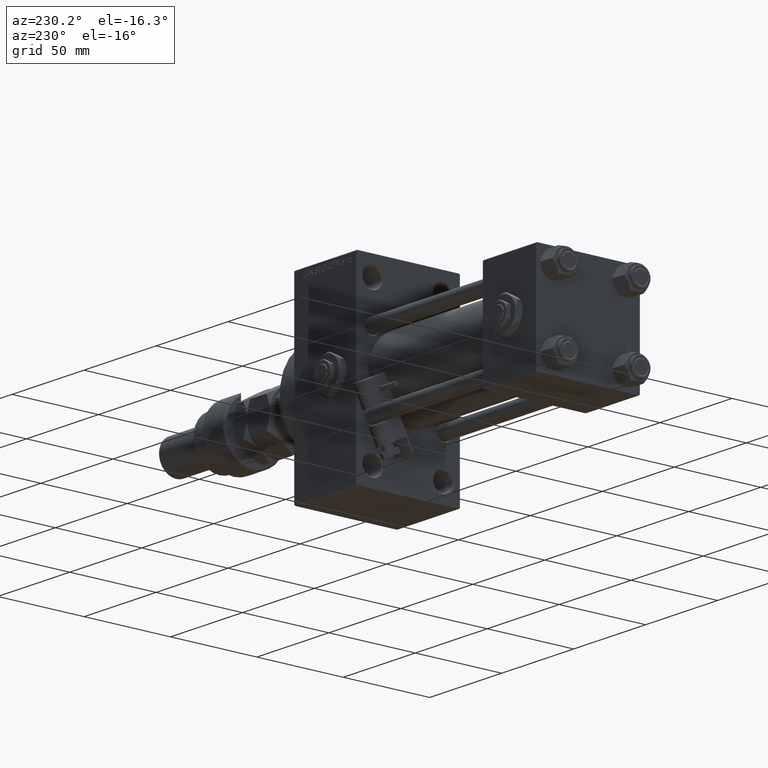
[diagram: clean part render]
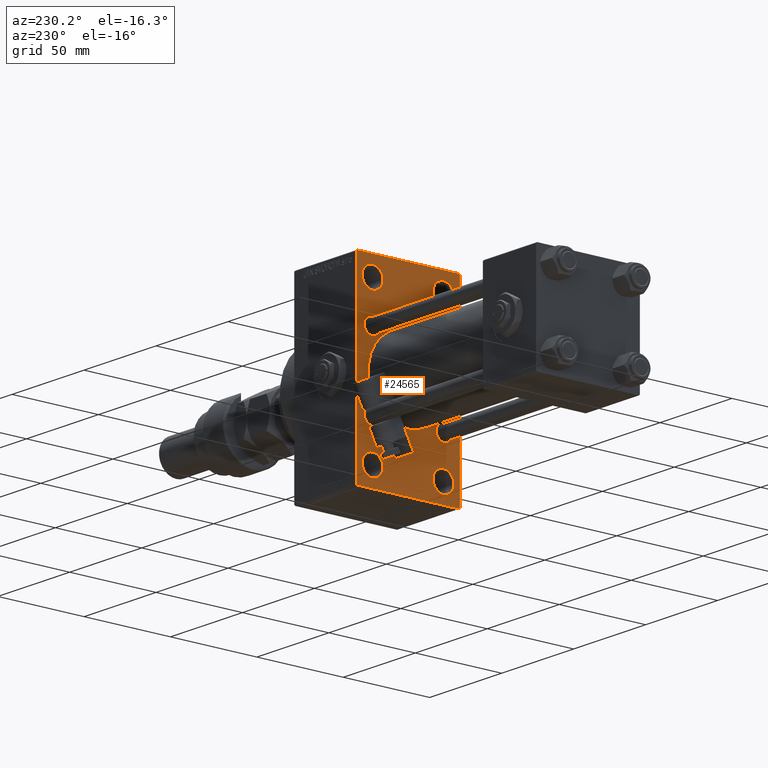
[diagram: same view with one face highlighted and labeled with its STEP entity id]
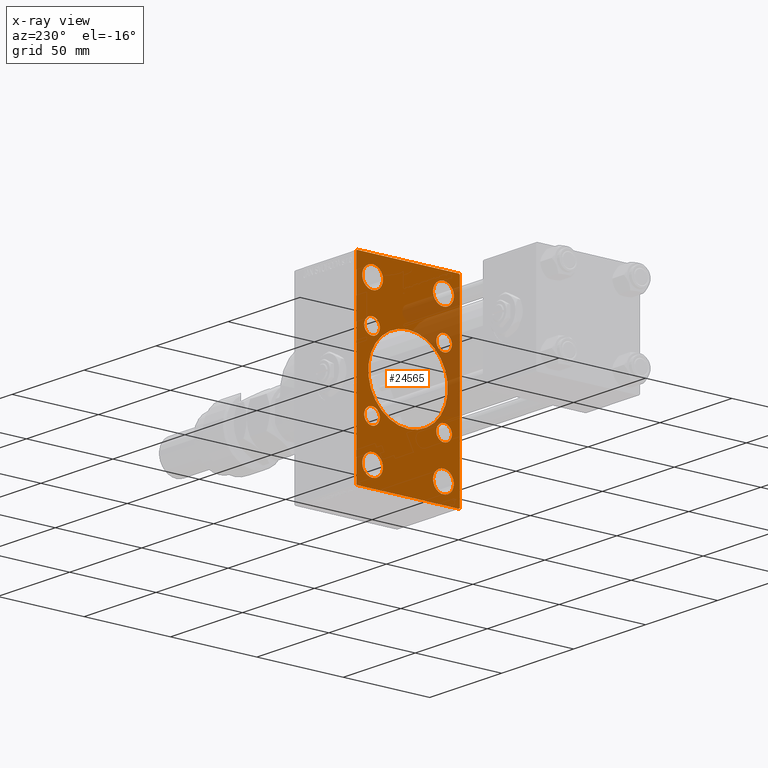
[diagram: x-ray of the same camera — body ghosted, the highlighted face saturated]
A machine part, auxiliary view. The second image highlights one B-rep face of the part: STEP entity #24565.
The next image is the same camera in x-ray: the body ghosted, the highlighted face saturated — about 19% of this face is hidden behind the body in this view.
In plain terms, the highlighted planar face has unit normal (-1, 0, 0).
Its self-contained STEP definition (entity closure, byte-faithful):
#404 = AXIS2_PLACEMENT_3D ( 'NONE', #41625, #49487, #28380 ) ;
#410 = CARTESIAN_POINT ( 'NONE',  ( 125.0000000000000000, 29.50000000000002132, 54.49999999999999289 ) ) ;
#422 = CARTESIAN_POINT ( 'NONE',  ( 125.0000000000000000, -20.50000000000000000, 37.50000000000002132 ) ) ;
#503 = ORIENTED_EDGE ( 'NONE', *, *, #37996, .T. ) ;
#566 = DIRECTION ( 'NONE',  ( -0.000000000000000000, -0.7071067811865474617, -0.7071067811865474617 ) ) ;
#615 = DIRECTION ( 'NONE',  ( 1.000000000000000000, -0.000000000000000000, 0.000000000000000000 ) ) ;
#660 = DIRECTION ( 'NONE',  ( 0.000000000000000000, 0.000000000000000000, 1.000000000000000000 ) ) ;
#721 = ORIENTED_EDGE ( 'NONE', *, *, #29693, .T. ) ;
#729 = VECTOR ( 'NONE', #18393, 1000.000000000000000 ) ;
#1064 = CIRCLE ( 'NONE', #17462, 4.500000000000007105 ) ;
#1438 = EDGE_LOOP ( 'NONE', ( #50406, #50508 ) ) ;
#1894 = LINE ( 'NONE', #7502, #729 ) ;
#2393 = CARTESIAN_POINT ( 'NONE',  ( 125.0000000000000000, 20.84999999999999787, -25.35000000000000853 ) ) ;
#2543 = LINE ( 'NONE', #30935, #47621 ) ;
#2581 = CIRCLE ( 'NONE', #32794, 23.00000000000000000 ) ;
#3138 = CIRCLE ( 'NONE', #16935, 5.999999999999977796 ) ;
#4189 = DIRECTION ( 'NONE',  ( 0.000000000000000000, 0.000000000000000000, -1.000000000000000000 ) ) ;
#4219 = DIRECTION ( 'NONE',  ( 1.000000000000000000, -0.000000000000000000, 0.000000000000000000 ) ) ;
#4328 = CARTESIAN_POINT ( 'NONE',  ( 125.0000000000000000, 20.84999999999999787, 25.35000000000000853 ) ) ;
#4522 = AXIS2_PLACEMENT_3D ( 'NONE', #46110, #4219, #13376 ) ;
#4715 = DIRECTION ( 'NONE',  ( 1.000000000000000000, -0.000000000000000000, 0.000000000000000000 ) ) ;
#4793 = EDGE_CURVE ( 'NONE', #33129, #10906, #35508, .T. ) ;
#4879 = CARTESIAN_POINT ( 'NONE',  ( 125.0000000000000000, -20.84999999999999076, 20.85000000000000497 ) ) ;
#5153 = EDGE_CURVE ( 'NONE', #49740, #30790, #2543, .T. ) ;
#5452 = DIRECTION ( 'NONE',  ( 0.000000000000000000, -1.000000000000000000, 1.156482317317871478E-16 ) ) ;
#5736 = EDGE_CURVE ( 'NONE', #29857, #10230, #46714, .T. ) ;
#6022 = CARTESIAN_POINT ( 'NONE',  ( 125.0000000000000000, -20.84999999999999076, -16.34999999999999787 ) ) ;
#6575 = EDGE_LOOP ( 'NONE', ( #40809, #40176, #36587, #22418, #35869, #43142, #46868, #32538 ) ) ;
#7234 = DIRECTION ( 'NONE',  ( 1.000000000000000000, -0.000000000000000000, 0.000000000000000000 ) ) ;
#7495 = CARTESIAN_POINT ( 'NONE',  ( 125.0000000000000000, 20.50000000000000000, 43.50000000000000000 ) ) ;
#7502 = CARTESIAN_POINT ( 'NONE',  ( 125.0000000000000000, -30.00000000000000000, 54.50000000000000000 ) ) ;
#7738 = VECTOR ( 'NONE', #5452, 1000.000000000000000 ) ;
#8505 = ORIENTED_EDGE ( 'NONE', *, *, #22431, .T. ) ;
#8590 = CIRCLE ( 'NONE', #46611, 4.500000000000007105 ) ;
#8732 = VERTEX_POINT ( 'NONE', #29645 ) ;
#8984 = CARTESIAN_POINT ( 'NONE',  ( 125.0000000000000000, 2.146024240737016609E-16, -23.00000000000000000 ) ) ;
#9085 = VERTEX_POINT ( 'NONE', #4328 ) ;
#9693 = VECTOR ( 'NONE', #48330, 1000.000000000000000 ) ;
#9947 = FACE_BOUND ( 'NONE', #28767, .T. ) ;
#10016 = ORIENTED_EDGE ( 'NONE', *, *, #4793, .T. ) ;
#10164 = DIRECTION ( 'NONE',  ( 1.000000000000000000, -0.000000000000000000, 0.000000000000000000 ) ) ;
#10230 = VERTEX_POINT ( 'NONE', #43307 ) ;
#10776 = VERTEX_POINT ( 'NONE', #8984 ) ;
#10816 = AXIS2_PLACEMENT_3D ( 'NONE', #33105, #4715, #37705 ) ;
#10854 = AXIS2_PLACEMENT_3D ( 'NONE', #32273, #41703, #24144 ) ;
#10906 = VERTEX_POINT ( 'NONE', #6022 ) ;
#11081 = ORIENTED_EDGE ( 'NONE', *, *, #36310, .T. ) ;
#11123 = EDGE_CURVE ( 'NONE', #48088, #18286, #13163, .T. ) ;
#11327 = EDGE_CURVE ( 'NONE', #30790, #36145, #44007, .T. ) ;
#11695 = DIRECTION ( 'NONE',  ( 1.000000000000000000, -0.000000000000000000, 0.000000000000000000 ) ) ;
#11858 = AXIS2_PLACEMENT_3D ( 'NONE', #18065, #43752, #22648 ) ;
#11905 = ORIENTED_EDGE ( 'NONE', *, *, #11123, .T. ) ;
#11984 = CARTESIAN_POINT ( 'NONE',  ( 125.0000000000000000, 20.84999999999999787, -16.34999999999999432 ) ) ;
#12001 = AXIS2_PLACEMENT_3D ( 'NONE', #38352, #34031, #26898 ) ;
#12624 = ORIENTED_EDGE ( 'NONE', *, *, #32885, .T. ) ;
#12941 = CARTESIAN_POINT ( 'NONE',  ( 125.0000000000000000, -20.50000000000000000, -37.50000000000002132 ) ) ;
#13163 = CIRCLE ( 'NONE', #38233, 5.999999999999977796 ) ;
#13231 = DIRECTION ( 'NONE',  ( 1.000000000000000000, 0.000000000000000000, 0.000000000000000000 ) ) ;
#13376 = DIRECTION ( 'NONE',  ( 0.000000000000000000, 0.000000000000000000, 1.000000000000000000 ) ) ;
#14236 = DIRECTION ( 'NONE',  ( 0.000000000000000000, 0.000000000000000000, 1.000000000000000000 ) ) ;
#14269 = PLANE ( 'NONE',  #11858 ) ;
#14460 = CARTESIAN_POINT ( 'NONE',  ( 125.0000000000000000, 20.50000000000000000, 37.50000000000002132 ) ) ;
#14645 = CIRCLE ( 'NONE', #50929, 4.500000000000007105 ) ;
#14724 = DIRECTION ( 'NONE',  ( 0.000000000000000000, -0.7071067811865352493, 0.7071067811865597852 ) ) ;
#15075 = DIRECTION ( 'NONE',  ( 0.000000000000000000, 0.000000000000000000, 1.000000000000000000 ) ) ;
#15100 = ORIENTED_EDGE ( 'NONE', *, *, #49848, .T. ) ;
#15120 = DIRECTION ( 'NONE',  ( 1.000000000000000000, -0.000000000000000000, 0.000000000000000000 ) ) ;
#15628 = DIRECTION ( 'NONE',  ( 1.000000000000000000, -0.000000000000000000, 0.000000000000000000 ) ) ;
#15694 = EDGE_LOOP ( 'NONE', ( #49977, #34892 ) ) ;
#15750 = EDGE_CURVE ( 'NONE', #10906, #33129, #19410, .T. ) ;
#16000 = CIRCLE ( 'NONE', #10816, 5.999999999999977796 ) ;
#16106 = VERTEX_POINT ( 'NONE', #21359 ) ;
#16160 = ORIENTED_EDGE ( 'NONE', *, *, #45811, .T. ) ;
#16341 = CARTESIAN_POINT ( 'NONE',  ( 125.0000000000000000, -20.50000000000000000, 43.50000000000000000 ) ) ;
#16557 = CARTESIAN_POINT ( 'NONE',  ( 125.0000000000000000, -20.84999999999999076, -20.85000000000000497 ) ) ;
#16677 = AXIS2_PLACEMENT_3D ( 'NONE', #16341, #37703, #660 ) ;
#16720 = EDGE_LOOP ( 'NONE', ( #503, #52188 ) ) ;
#16935 = AXIS2_PLACEMENT_3D ( 'NONE', #7495, #7234, #18598 ) ;
#17109 = ORIENTED_EDGE ( 'NONE', *, *, #29023, .T. ) ;
#17166 = VERTEX_POINT ( 'NONE', #23260 ) ;
#17223 = CARTESIAN_POINT ( 'NONE',  ( 125.0000000000000000, -20.84999999999999076, -20.85000000000000497 ) ) ;
#17462 = AXIS2_PLACEMENT_3D ( 'NONE', #51980, #52259, #31165 ) ;
#17732 = EDGE_CURVE ( 'NONE', #29383, #8732, #16000, .T. ) ;
#17759 = CIRCLE ( 'NONE', #10854, 4.500000000000007105 ) ;
#17931 = ORIENTED_EDGE ( 'NONE', *, *, #51969, .T. ) ;
#18065 = CARTESIAN_POINT ( 'NONE',  ( 125.0000000000000000, 0.000000000000000000, 0.000000000000000000 ) ) ;
#18240 = CIRCLE ( 'NONE', #50187, 23.00000000000000000 ) ;
#18286 = VERTEX_POINT ( 'NONE', #12941 ) ;
#18288 = DIRECTION ( 'NONE',  ( 0.000000000000000000, 0.000000000000000000, 1.000000000000000000 ) ) ;
#18393 = DIRECTION ( 'NONE',  ( 0.000000000000000000, 0.000000000000000000, -1.000000000000000000 ) ) ;
#18396 = DIRECTION ( 'NONE',  ( 1.000000000000000000, -0.000000000000000000, 0.000000000000000000 ) ) ;
#18430 = CIRCLE ( 'NONE', #16677, 5.999999999999977796 ) ;
#18598 = DIRECTION ( 'NONE',  ( 0.000000000000000000, 0.000000000000000000, 1.000000000000000000 ) ) ;
#18746 = CARTESIAN_POINT ( 'NONE',  ( 125.0000000000000000, 29.99999999999999645, 53.99999999999999289 ) ) ;
#19126 = CARTESIAN_POINT ( 'NONE',  ( 125.0000000000000000, 29.99999999999999645, 54.49999999999999289 ) ) ;
#19258 = VERTEX_POINT ( 'NONE', #35238 ) ;
#19410 = CIRCLE ( 'NONE', #34094, 4.500000000000007105 ) ;
#19578 = AXIS2_PLACEMENT_3D ( 'NONE', #38939, #18396, #47588 ) ;
#20562 = CARTESIAN_POINT ( 'NONE',  ( 125.0000000000000000, -20.84999999999999076, -25.35000000000001208 ) ) ;
#21359 = CARTESIAN_POINT ( 'NONE',  ( 125.0000000000000000, -29.49999999999997513, 54.50000000000000000 ) ) ;
#21733 = CIRCLE ( 'NONE', #4522, 5.999999999999977796 ) ;
#22124 = FACE_OUTER_BOUND ( 'NONE', #6575, .T. ) ;
#22418 = ORIENTED_EDGE ( 'NONE', *, *, #51971, .T. ) ;
#22431 = EDGE_CURVE ( 'NONE', #37616, #51749, #3138, .T. ) ;
#22648 = DIRECTION ( 'NONE',  ( -0.000000000000000000, 0.000000000000000000, 1.000000000000000000 ) ) ;
#22710 = VERTEX_POINT ( 'NONE', #35029 ) ;
#22854 = CIRCLE ( 'NONE', #404, 5.999999999999977796 ) ;
#23192 = FACE_BOUND ( 'NONE', #1438, .T. ) ;
#23260 = CARTESIAN_POINT ( 'NONE',  ( 125.0000000000000000, -30.00000000000000000, -53.99999999999998579 ) ) ;
#23414 = EDGE_CURVE ( 'NONE', #51749, #37616, #42876, .T. ) ;
#23657 = LINE ( 'NONE', #48010, #37016 ) ;
#23878 = EDGE_LOOP ( 'NONE', ( #12624, #16160 ) ) ;
#23998 = CARTESIAN_POINT ( 'NONE',  ( 125.0000000000000000, -20.50000000000000000, -43.50000000000000000 ) ) ;
#24130 = DIRECTION ( 'NONE',  ( 0.000000000000000000, 0.000000000000000000, 1.000000000000000000 ) ) ;
#24144 = DIRECTION ( 'NONE',  ( 0.000000000000000000, 0.000000000000000000, 1.000000000000000000 ) ) ;
#24565 = ADVANCED_FACE ( 'NONE', ( #23192, #46998, #47265, #51048, #31036, #34840, #39419, #9947, #26437, #22124 ), #14269, .T. ) ;
#25712 = CARTESIAN_POINT ( 'NONE',  ( 125.0000000000000000, 29.99999999999999645, 54.49999999999999289 ) ) ;
#25931 = LINE ( 'NONE', #42434, #42422 ) ;
#26437 = FACE_BOUND ( 'NONE', #27614, .T. ) ;
#26751 = EDGE_CURVE ( 'NONE', #51382, #17166, #1894, .T. ) ;
#26857 = DIRECTION ( 'NONE',  ( 0.000000000000000000, 0.7071067811865279218, -0.7071067811865671127 ) ) ;
#26898 = DIRECTION ( 'NONE',  ( 0.000000000000000000, 0.000000000000000000, 1.000000000000000000 ) ) ;
#27133 = EDGE_CURVE ( 'NONE', #22710, #17166, #23657, .T. ) ;
#27343 = VERTEX_POINT ( 'NONE', #11984 ) ;
#27532 = CARTESIAN_POINT ( 'NONE',  ( 125.0000000000000000, 20.84999999999999787, 20.85000000000000142 ) ) ;
#27614 = EDGE_LOOP ( 'NONE', ( #721, #11081 ) ) ;
#27988 = DIRECTION ( 'NONE',  ( 0.000000000000000000, 0.000000000000000000, 1.000000000000000000 ) ) ;
#28380 = DIRECTION ( 'NONE',  ( 0.000000000000000000, 0.000000000000000000, 1.000000000000000000 ) ) ;
#28409 = CIRCLE ( 'NONE', #12001, 5.999999999999977796 ) ;
#28767 = EDGE_LOOP ( 'NONE', ( #45713, #10016 ) ) ;
#28877 = VERTEX_POINT ( 'NONE', #45692 ) ;
#28997 = CARTESIAN_POINT ( 'NONE',  ( 125.0000000000000000, 29.99999999999999645, -54.49999999999999289 ) ) ;
#29023 = EDGE_CURVE ( 'NONE', #19258, #9085, #8590, .T. ) ;
#29383 = VERTEX_POINT ( 'NONE', #422 ) ;
#29645 = CARTESIAN_POINT ( 'NONE',  ( 125.0000000000000000, -20.50000000000000000, 49.49999999999997158 ) ) ;
#29693 = EDGE_CURVE ( 'NONE', #36655, #10776, #2581, .T. ) ;
#29857 = VERTEX_POINT ( 'NONE', #52964 ) ;
#30001 = DIRECTION ( 'NONE',  ( 0.000000000000000000, 0.000000000000000000, -1.000000000000000000 ) ) ;
#30790 = VERTEX_POINT ( 'NONE', #18746 ) ;
#30935 = CARTESIAN_POINT ( 'NONE',  ( 125.0000000000000000, 42.00000000000082423, 41.99999999999849365 ) ) ;
#31036 = FACE_BOUND ( 'NONE', #16720, .T. ) ;
#31165 = DIRECTION ( 'NONE',  ( 0.000000000000000000, 0.000000000000000000, 1.000000000000000000 ) ) ;
#31421 = EDGE_CURVE ( 'NONE', #46995, #28877, #28409, .T. ) ;
#31792 = VERTEX_POINT ( 'NONE', #38228 ) ;
#31831 = DIRECTION ( 'NONE',  ( 1.000000000000000000, -0.000000000000000000, 0.000000000000000000 ) ) ;
#32027 = EDGE_CURVE ( 'NONE', #49740, #16106, #50863, .T. ) ;
#32273 = CARTESIAN_POINT ( 'NONE',  ( 125.0000000000000000, 20.84999999999999787, 20.85000000000000142 ) ) ;
#32408 = DIRECTION ( 'NONE',  ( 0.000000000000000000, 0.000000000000000000, 1.000000000000000000 ) ) ;
#32441 = EDGE_LOOP ( 'NONE', ( #17931, #17109 ) ) ;
#32538 = ORIENTED_EDGE ( 'NONE', *, *, #43528, .T. ) ;
#32791 = DIRECTION ( 'NONE',  ( 0.000000000000000000, -1.000000000000000000, -1.156482317317871478E-16 ) ) ;
#32794 = AXIS2_PLACEMENT_3D ( 'NONE', #50289, #13231, #30001 ) ;
#32796 = DIRECTION ( 'NONE',  ( -0.000000000000000000, 0.7071067811865451302, 0.7071067811865500152 ) ) ;
#32885 = EDGE_CURVE ( 'NONE', #27343, #39491, #14645, .T. ) ;
#33105 = CARTESIAN_POINT ( 'NONE',  ( 125.0000000000000000, -20.50000000000000000, 43.50000000000000000 ) ) ;
#33129 = VERTEX_POINT ( 'NONE', #20562 ) ;
#33545 = DIRECTION ( 'NONE',  ( 1.000000000000000000, -0.000000000000000000, 0.000000000000000000 ) ) ;
#34031 = DIRECTION ( 'NONE',  ( 1.000000000000000000, -0.000000000000000000, 0.000000000000000000 ) ) ;
#34094 = AXIS2_PLACEMENT_3D ( 'NONE', #16557, #11695, #24130 ) ;
#34840 = FACE_BOUND ( 'NONE', #32441, .T. ) ;
#34892 = ORIENTED_EDGE ( 'NONE', *, *, #45090, .T. ) ;
#35003 = LINE ( 'NONE', #28997, #51463 ) ;
#35029 = CARTESIAN_POINT ( 'NONE',  ( 125.0000000000000000, -29.50000000000000355, -54.50000000000000000 ) ) ;
#35238 = CARTESIAN_POINT ( 'NONE',  ( 125.0000000000000000, 20.84999999999999787, 16.34999999999999432 ) ) ;
#35508 = CIRCLE ( 'NONE', #42388, 4.500000000000007105 ) ;
#35869 = ORIENTED_EDGE ( 'NONE', *, *, #32027, .F. ) ;
#36145 = VERTEX_POINT ( 'NONE', #37175 ) ;
#36310 = EDGE_CURVE ( 'NONE', #10776, #36655, #18240, .T. ) ;
#36587 = ORIENTED_EDGE ( 'NONE', *, *, #26751, .F. ) ;
#36655 = VERTEX_POINT ( 'NONE', #39171 ) ;
#37016 = VECTOR ( 'NONE', #14724, 1000.000000000000000 ) ;
#37175 = CARTESIAN_POINT ( 'NONE',  ( 125.0000000000000000, 29.99999999999999645, -53.99999999999999289 ) ) ;
#37233 = AXIS2_PLACEMENT_3D ( 'NONE', #4879, #33545, #14236 ) ;
#37616 = VERTEX_POINT ( 'NONE', #14460 ) ;
#37703 = DIRECTION ( 'NONE',  ( 1.000000000000000000, -0.000000000000000000, 0.000000000000000000 ) ) ;
#37705 = DIRECTION ( 'NONE',  ( 0.000000000000000000, 0.000000000000000000, 1.000000000000000000 ) ) ;
#37996 = EDGE_CURVE ( 'NONE', #10230, #29857, #1064, .T. ) ;
#38228 = CARTESIAN_POINT ( 'NONE',  ( 125.0000000000000000, 29.49999999999999645, -54.49999999999999289 ) ) ;
#38233 = AXIS2_PLACEMENT_3D ( 'NONE', #23998, #15628, #41011 ) ;
#38352 = CARTESIAN_POINT ( 'NONE',  ( 125.0000000000000000, 20.50000000000000000, -43.50000000000000000 ) ) ;
#38474 = EDGE_LOOP ( 'NONE', ( #15100, #11905 ) ) ;
#38490 = VECTOR ( 'NONE', #32796, 1000.000000000000114 ) ;
#38939 = CARTESIAN_POINT ( 'NONE',  ( 125.0000000000000000, 20.50000000000000000, 43.50000000000000000 ) ) ;
#39171 = CARTESIAN_POINT ( 'NONE',  ( 125.0000000000000000, -2.602085213965210642E-15, 23.00000000000000000 ) ) ;
#39419 = FACE_BOUND ( 'NONE', #23878, .T. ) ;
#39491 = VERTEX_POINT ( 'NONE', #2393 ) ;
#39922 = CIRCLE ( 'NONE', #40754, 4.500000000000007105 ) ;
#40176 = ORIENTED_EDGE ( 'NONE', *, *, #27133, .T. ) ;
#40632 = LINE ( 'NONE', #53083, #38490 ) ;
#40754 = AXIS2_PLACEMENT_3D ( 'NONE', #47801, #31831, #15075 ) ;
#40809 = ORIENTED_EDGE ( 'NONE', *, *, #43072, .T. ) ;
#41011 = DIRECTION ( 'NONE',  ( 0.000000000000000000, 0.000000000000000000, 1.000000000000000000 ) ) ;
#41172 = ORIENTED_EDGE ( 'NONE', *, *, #23414, .T. ) ;
#41214 = CARTESIAN_POINT ( 'NONE',  ( 125.0000000000000000, -2.602085213965210642E-15, 0.000000000000000000 ) ) ;
#41625 = CARTESIAN_POINT ( 'NONE',  ( 125.0000000000000000, -20.50000000000000000, -43.50000000000000000 ) ) ;
#41703 = DIRECTION ( 'NONE',  ( 1.000000000000000000, -0.000000000000000000, 0.000000000000000000 ) ) ;
#42302 = CARTESIAN_POINT ( 'NONE',  ( 125.0000000000000000, -30.00000000000000000, 53.99999999999997158 ) ) ;
#42388 = AXIS2_PLACEMENT_3D ( 'NONE', #17223, #10164, #18288 ) ;
#42422 = VECTOR ( 'NONE', #566, 1000.000000000000114 ) ;
#42434 = CARTESIAN_POINT ( 'NONE',  ( 125.0000000000000000, 41.99999999999998579, -41.99999999999998579 ) ) ;
#42876 = CIRCLE ( 'NONE', #19578, 5.999999999999977796 ) ;
#43072 = EDGE_CURVE ( 'NONE', #31792, #22710, #35003, .T. ) ;
#43142 = ORIENTED_EDGE ( 'NONE', *, *, #5153, .T. ) ;
#43307 = CARTESIAN_POINT ( 'NONE',  ( 125.0000000000000000, -20.84999999999999076, 25.35000000000001208 ) ) ;
#43528 = EDGE_CURVE ( 'NONE', #36145, #31792, #25931, .T. ) ;
#43752 = DIRECTION ( 'NONE',  ( -1.000000000000000000, 0.000000000000000000, -0.000000000000000000 ) ) ;
#44007 = LINE ( 'NONE', #19126, #9693 ) ;
#45090 = EDGE_CURVE ( 'NONE', #28877, #46995, #21733, .T. ) ;
#45692 = CARTESIAN_POINT ( 'NONE',  ( 125.0000000000000000, 20.50000000000000000, -49.49999999999997158 ) ) ;
#45713 = ORIENTED_EDGE ( 'NONE', *, *, #15750, .T. ) ;
#45811 = EDGE_CURVE ( 'NONE', #39491, #27343, #39922, .T. ) ;
#46110 = CARTESIAN_POINT ( 'NONE',  ( 125.0000000000000000, 20.50000000000000000, -43.50000000000000000 ) ) ;
#46611 = AXIS2_PLACEMENT_3D ( 'NONE', #27532, #15120, #32408 ) ;
#46618 = EDGE_LOOP ( 'NONE', ( #41172, #8505 ) ) ;
#46714 = CIRCLE ( 'NONE', #37233, 4.500000000000007105 ) ;
#46868 = ORIENTED_EDGE ( 'NONE', *, *, #11327, .T. ) ;
#46995 = VERTEX_POINT ( 'NONE', #48337 ) ;
#46998 = FACE_BOUND ( 'NONE', #38474, .T. ) ;
#47265 = FACE_BOUND ( 'NONE', #15694, .T. ) ;
#47289 = EDGE_CURVE ( 'NONE', #8732, #29383, #18430, .T. ) ;
#47588 = DIRECTION ( 'NONE',  ( 0.000000000000000000, 0.000000000000000000, 1.000000000000000000 ) ) ;
#47621 = VECTOR ( 'NONE', #26857, 1000.000000000000000 ) ;
#47801 = CARTESIAN_POINT ( 'NONE',  ( 125.0000000000000000, 20.84999999999999787, -20.85000000000000142 ) ) ;
#48010 = CARTESIAN_POINT ( 'NONE',  ( 125.0000000000000000, -42.00000000000051159, -41.99999999999905498 ) ) ;
#48088 = VERTEX_POINT ( 'NONE', #52861 ) ;
#48330 = DIRECTION ( 'NONE',  ( 0.000000000000000000, 0.000000000000000000, -1.000000000000000000 ) ) ;
#48337 = CARTESIAN_POINT ( 'NONE',  ( 125.0000000000000000, 20.50000000000000000, -37.50000000000002132 ) ) ;
#48812 = DIRECTION ( 'NONE',  ( 1.000000000000000000, 0.000000000000000000, 0.000000000000000000 ) ) ;
#49487 = DIRECTION ( 'NONE',  ( 1.000000000000000000, -0.000000000000000000, 0.000000000000000000 ) ) ;
#49740 = VERTEX_POINT ( 'NONE', #410 ) ;
#49848 = EDGE_CURVE ( 'NONE', #18286, #48088, #22854, .T. ) ;
#49977 = ORIENTED_EDGE ( 'NONE', *, *, #31421, .T. ) ;
#50075 = CARTESIAN_POINT ( 'NONE',  ( 125.0000000000000000, 20.84999999999999787, -20.85000000000000142 ) ) ;
#50187 = AXIS2_PLACEMENT_3D ( 'NONE', #41214, #48812, #4189 ) ;
#50219 = CARTESIAN_POINT ( 'NONE',  ( 125.0000000000000000, 20.50000000000000000, 49.49999999999997158 ) ) ;
#50289 = CARTESIAN_POINT ( 'NONE',  ( 125.0000000000000000, -2.602085213965210642E-15, 0.000000000000000000 ) ) ;
#50406 = ORIENTED_EDGE ( 'NONE', *, *, #47289, .T. ) ;
#50508 = ORIENTED_EDGE ( 'NONE', *, *, #17732, .T. ) ;
#50863 = LINE ( 'NONE', #25712, #7738 ) ;
#50929 = AXIS2_PLACEMENT_3D ( 'NONE', #50075, #615, #27988 ) ;
#51048 = FACE_BOUND ( 'NONE', #46618, .T. ) ;
#51382 = VERTEX_POINT ( 'NONE', #42302 ) ;
#51463 = VECTOR ( 'NONE', #32791, 1000.000000000000000 ) ;
#51749 = VERTEX_POINT ( 'NONE', #50219 ) ;
#51969 = EDGE_CURVE ( 'NONE', #9085, #19258, #17759, .T. ) ;
#51971 = EDGE_CURVE ( 'NONE', #51382, #16106, #40632, .T. ) ;
#51980 = CARTESIAN_POINT ( 'NONE',  ( 125.0000000000000000, -20.84999999999999076, 20.85000000000000497 ) ) ;
#52188 = ORIENTED_EDGE ( 'NONE', *, *, #5736, .T. ) ;
#52259 = DIRECTION ( 'NONE',  ( 1.000000000000000000, -0.000000000000000000, 0.000000000000000000 ) ) ;
#52861 = CARTESIAN_POINT ( 'NONE',  ( 125.0000000000000000, -20.50000000000000000, -49.49999999999997158 ) ) ;
#52964 = CARTESIAN_POINT ( 'NONE',  ( 125.0000000000000000, -20.84999999999999076, 16.34999999999999787 ) ) ;
#53083 = CARTESIAN_POINT ( 'NONE',  ( 125.0000000000000000, -42.00000000000008527, 41.99999999999979394 ) ) ;